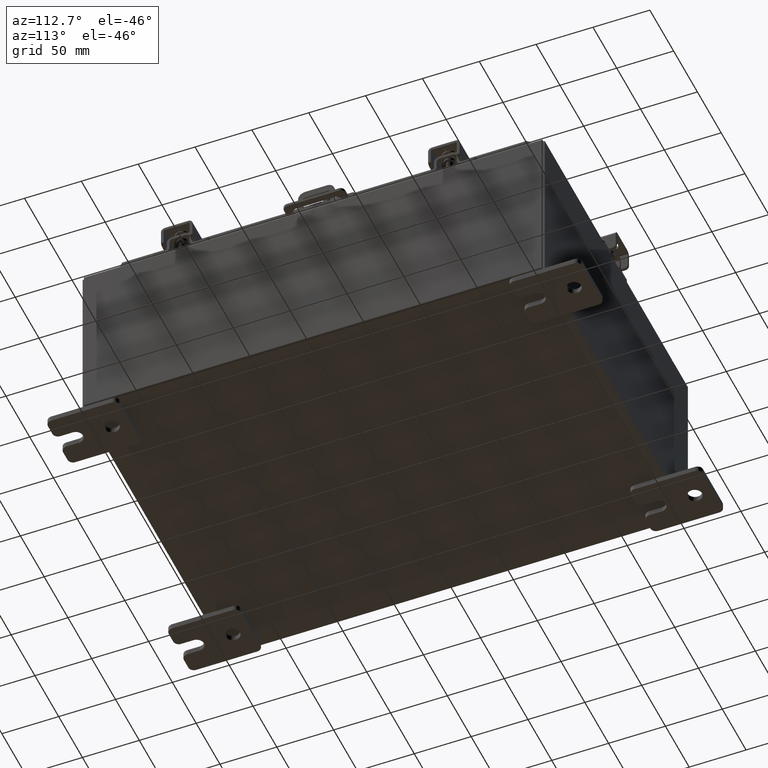
[diagram: clean part render]
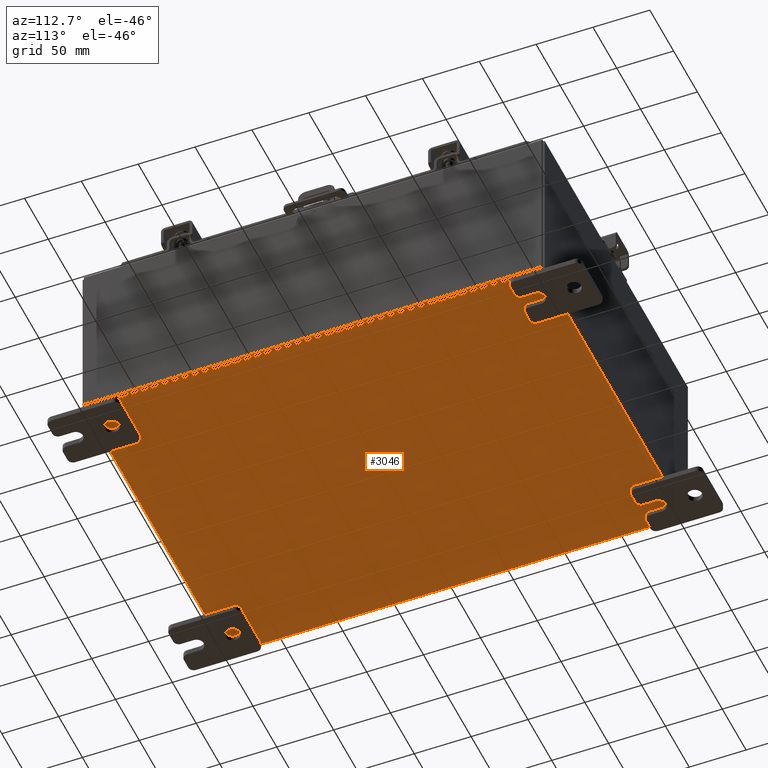
[diagram: same view with one face highlighted and labeled with its STEP entity id]
A machine part, auxiliary view. The second image highlights one B-rep face of the part: STEP entity #3046.
In plain terms, the highlighted planar face has unit normal (0, 0, -1).
Its self-contained STEP definition (entity closure, byte-faithful):
#583 = VECTOR ( 'NONE', #15845, 39.37007874015748100 ) ;
#710 = CARTESIAN_POINT ( 'NONE',  ( 5.912299999999999200, 7.925300000000000000, -0.07469999999999994700 ) ) ;
#729 = CARTESIAN_POINT ( 'NONE',  ( -6.000000000000001800, -7.925300000000000900, -0.07470000000000000300 ) ) ;
#1110 = AXIS2_PLACEMENT_3D ( 'NONE', #18473, #6403, #20508 ) ;
#2622 = FACE_OUTER_BOUND ( 'NONE', #23204, .T. ) ;
#3046 = ADVANCED_FACE ( 'NONE', ( #2622 ), #14416, .T. ) ;
#4821 = VECTOR ( 'NONE', #13699, 39.37007874015748100 ) ;
#5236 = EDGE_CURVE ( 'NONE', #5877, #5999, #12602, .T. ) ;
#5421 = ORIENTED_EDGE ( 'NONE', *, *, #13283, .F. ) ;
#5877 = VERTEX_POINT ( 'NONE', #710 ) ;
#5999 = VERTEX_POINT ( 'NONE', #9050 ) ;
#6403 = DIRECTION ( 'NONE',  ( 0.0000000000000000000, 0.0000000000000000000, -1.000000000000000000 ) ) ;
#6781 = DIRECTION ( 'NONE',  ( 1.000000000000000000, 0.0000000000000000000, 0.0000000000000000000 ) ) ;
#7857 = ORIENTED_EDGE ( 'NONE', *, *, #16190, .F. ) ;
#9050 = CARTESIAN_POINT ( 'NONE',  ( 5.912299999999994800, -7.925300000000000900, -0.07470000000000000300 ) ) ;
#10674 = VERTEX_POINT ( 'NONE', #17067 ) ;
#10885 = CARTESIAN_POINT ( 'NONE',  ( -5.912300000000001000, -7.925300000000000900, -0.07469999999999874000 ) ) ;
#11801 = CARTESIAN_POINT ( 'NONE',  ( -6.000000000000001800, 7.925299999999998200, -0.07470000000000000300 ) ) ;
#12602 = LINE ( 'NONE', #19434, #22682 ) ;
#13283 = EDGE_CURVE ( 'NONE', #10674, #5999, #15154, .T. ) ;
#13403 = ORIENTED_EDGE ( 'NONE', *, *, #5236, .T. ) ;
#13699 = DIRECTION ( 'NONE',  ( -0.0000000000000000000, 1.000000000000000000, -8.208677865577646300E-017 ) ) ;
#14416 = PLANE ( 'NONE',  #1110 ) ;
#15154 = LINE ( 'NONE', #729, #20534 ) ;
#15845 = DIRECTION ( 'NONE',  ( -1.000000000000000000, -0.0000000000000000000, -0.0000000000000000000 ) ) ;
#16190 = EDGE_CURVE ( 'NONE', #5877, #25322, #21367, .T. ) ;
#17067 = CARTESIAN_POINT ( 'NONE',  ( -5.912300000000001000, -7.925300000000000900, -0.07469999999999874000 ) ) ;
#18473 = CARTESIAN_POINT ( 'NONE',  ( 0.0000000000000000000, 0.0000000000000000000, -0.07470000000000000300 ) ) ;
#19434 = CARTESIAN_POINT ( 'NONE',  ( 5.912299999999999200, 7.925300000000000000, -0.07469999999999994700 ) ) ;
#20508 = DIRECTION ( 'NONE',  ( -1.000000000000000000, 0.0000000000000000000, -0.0000000000000000000 ) ) ;
#20534 = VECTOR ( 'NONE', #6781, 39.37007874015748100 ) ;
#21367 = LINE ( 'NONE', #11801, #583 ) ;
#21376 = DIRECTION ( 'NONE',  ( -0.0000000000000000000, -1.000000000000000000, -0.0000000000000000000 ) ) ;
#22682 = VECTOR ( 'NONE', #21376, 39.37007874015748100 ) ;
#23204 = EDGE_LOOP ( 'NONE', ( #5421, #25505, #7857, #13403 ) ) ;
#24169 = CARTESIAN_POINT ( 'NONE',  ( -5.912300000000001000, 7.925299999999998200, -0.07470000000000000300 ) ) ;
#25322 = VERTEX_POINT ( 'NONE', #24169 ) ;
#25505 = ORIENTED_EDGE ( 'NONE', *, *, #25596, .T. ) ;
#25593 = LINE ( 'NONE', #10885, #4821 ) ;
#25596 = EDGE_CURVE ( 'NONE', #10674, #25322, #25593, .T. ) ;